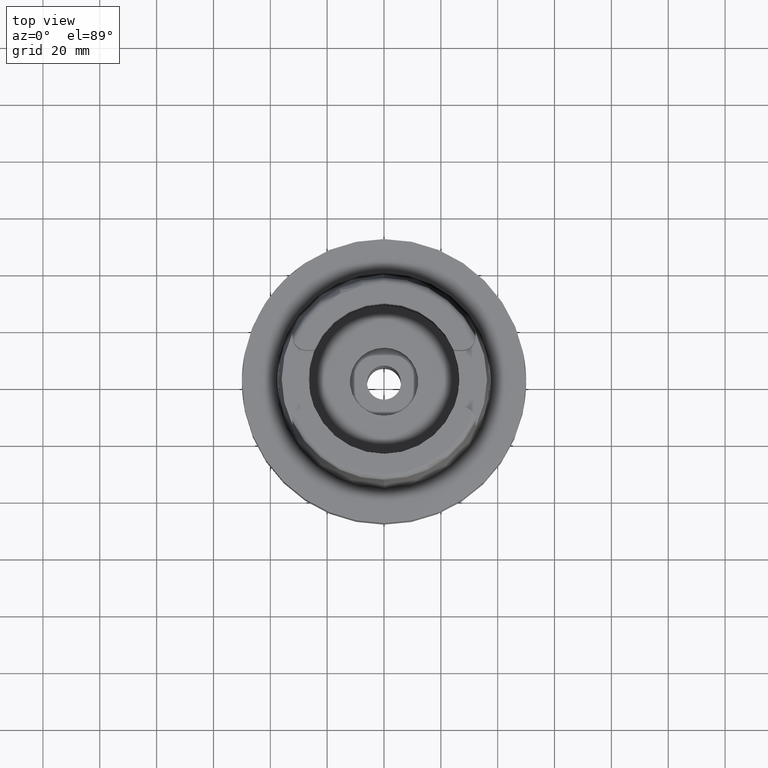
[diagram: clean part render]
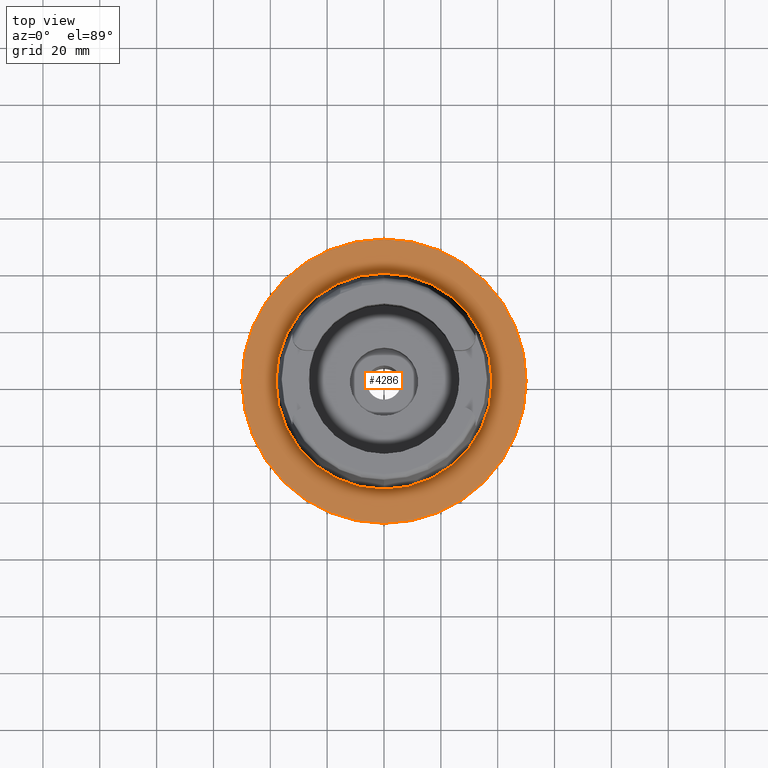
[diagram: same view with one face highlighted and labeled with its STEP entity id]
A machine part, top view. The second image highlights one B-rep face of the part: STEP entity #4286.
In plain terms, the highlighted planar face has unit normal (0, 0, 1).
Its self-contained STEP definition (entity closure, byte-faithful):
#2031=CARTESIAN_POINT('',(0.E0,0.E0,0.E0));
#2032=DIRECTION('',(0.E0,0.E0,-1.E0));
#2033=DIRECTION('',(0.E0,-1.E0,0.E0));
#2034=AXIS2_PLACEMENT_3D('',#2031,#2032,#2033);
#2039=CARTESIAN_POINT('',(0.E0,0.E0,0.E0));
#2040=DIRECTION('',(0.E0,0.E0,-1.E0));
#2041=DIRECTION('',(0.E0,1.E0,0.E0));
#2042=AXIS2_PLACEMENT_3D('',#2039,#2040,#2041);
#2047=CARTESIAN_POINT('',(0.E0,0.E0,1.023181539495E-12));
#2048=DIRECTION('',(0.E0,0.E0,1.E0));
#2049=DIRECTION('',(0.E0,-1.E0,0.E0));
#2050=AXIS2_PLACEMENT_3D('',#2047,#2048,#2049);
#2055=CARTESIAN_POINT('',(0.E0,0.E0,1.023181539495E-12));
#2056=DIRECTION('',(0.E0,0.E0,1.E0));
#2057=DIRECTION('',(0.E0,1.E0,0.E0));
#2058=AXIS2_PLACEMENT_3D('',#2055,#2056,#2057);
#2495=CARTESIAN_POINT('',(0.E0,-3.800001658252E1,6.821210263297E-13));
#2496=VERTEX_POINT('',#2495);
#2497=CARTESIAN_POINT('',(0.E0,3.800001658252E1,1.023181539495E-12));
#2498=VERTEX_POINT('',#2497);
#2760=CARTESIAN_POINT('',(0.E0,5.E1,0.E0));
#2761=VERTEX_POINT('',#2760);
#2762=CARTESIAN_POINT('',(0.E0,-5.E1,0.E0));
#2763=VERTEX_POINT('',#2762);
#4273=CARTESIAN_POINT('',(0.E0,0.E0,0.E0));
#4274=DIRECTION('',(0.E0,0.E0,1.E0));
#4275=DIRECTION('',(0.E0,1.E0,0.E0));
#4276=AXIS2_PLACEMENT_3D('',#4273,#4274,#4275);
#4277=PLANE('',#4276);
#4278=ORIENTED_EDGE('',*,*,#4038,.T.);
#4279=ORIENTED_EDGE('',*,*,#4147,.T.);
#4280=EDGE_LOOP('',(#4278,#4279));
#4281=FACE_OUTER_BOUND('',#4280,.F.);
#4282=ORIENTED_EDGE('',*,*,#3014,.T.);
#4283=ORIENTED_EDGE('',*,*,#2985,.T.);
#4284=EDGE_LOOP('',(#4282,#4283));
#4285=FACE_BOUND('',#4284,.F.);
#2035=CIRCLE('',#2034,5.E1);
#2043=CIRCLE('',#2042,5.E1);
#2051=CIRCLE('',#2050,3.800001658252E1);
#2059=CIRCLE('',#2058,3.800001658252E1);
#2985=EDGE_CURVE('',#2498,#2496,#2059,.T.);
#3014=EDGE_CURVE('',#2496,#2498,#2051,.T.);
#4038=EDGE_CURVE('',#2763,#2761,#2035,.T.);
#4147=EDGE_CURVE('',#2761,#2763,#2043,.T.);
#4286=ADVANCED_FACE('',(#4281,#4285),#4277,.T.);